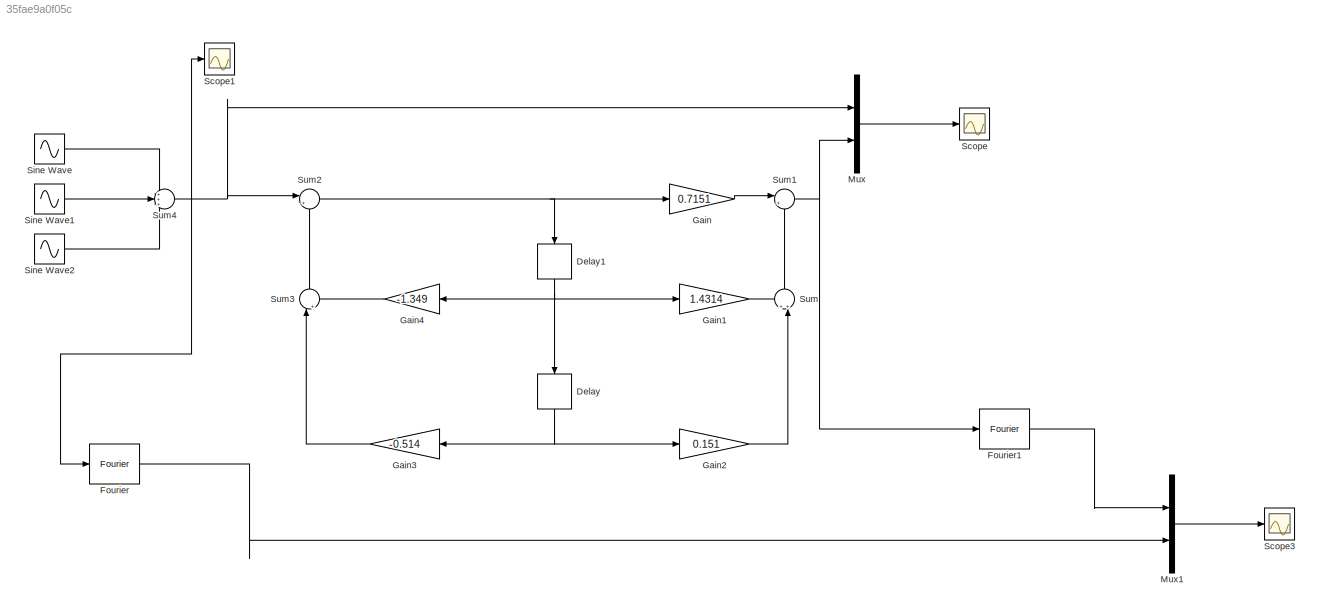
MODEL slx_35fae9a0f05c
KIND model
CONFIG AbsTol = auto
CONFIG EnableMultiTasking = off
CONFIG FixedStep = auto
CONFIG MaxStep = auto
CONFIG MinStep = auto
CONFIG RelTol = 1e-3
CONFIG SampleTimeConstraint = Unconstrained
CONFIG SolverName = VariableStepAuto
CONFIG StartTime = 0.0
CONFIG StopTime = 1
BLOCK [Delay] Delay
  DelayLength = 1
  InitialCondition = 0
  InputPortMap = u0
  NameLocation = left
BLOCK [Delay] Delay1
  DelayLength = 1
  InitialCondition = 0
  InputPortMap = u0
  NameLocation = left
BLOCK [Reference] Fourier  REF=spsFourierLib/Fourier
  LibrarySourceBlock = sps_lib/Sensors and Measurements/Fourier
  SourceBlock = spsFourierLib/Fourier
  SourceType = Fourier
BLOCK [Reference] Fourier1  REF=spsFourierLib/Fourier
  LibrarySourceBlock = sps_lib/Sensors and Measurements/Fourier
  SourceBlock = spsFourierLib/Fourier
  SourceType = Fourier
BLOCK [Gain] Gain
  Gain = 0.7151
BLOCK [Gain] Gain1
  Gain = 1.4314
BLOCK [Gain] Gain2
  Gain = 0.151
BLOCK [Gain] Gain3
  Gain = -0.514
BLOCK [Gain] Gain4
  Gain = -1.349
BLOCK [Mux] Mux
  DisplayOption = bar
  Inputs = 2
BLOCK [Mux] Mux1
  DisplayOption = bar
  Inputs = 2
BLOCK [Scope] Scope
  Floating = off
  NumInputPorts = 1
  ScopeSpecificationString = Simulink.scopes.TimeScopeBlockCfg('CurrentConfiguration', extmgr.ConfigurationSet(extmgr.Configuration('Core','General UI',true),extmgr.Configuration('Core','Source UI',true),extmgr.Configuration('Sources','WiredSimulink',true),extmgr.Configuration('Visuals','Time Domain',true,'SerializedDisplays',{struct('MinYLimReal','-4.01339','MaxYLimReal','4.71751','YLabelReal','','MinYLimMag','0.00000','MaxY...<+1391ch>
BLOCK [Scope] Scope1
  Floating = off
  NumInputPorts = 1
  ScopeSpecificationString = Simulink.scopes.TimeScopeBlockCfg('CurrentConfiguration', extmgr.ConfigurationSet(extmgr.Configuration('Core','General UI',true),extmgr.Configuration('Core','Source UI',true),extmgr.Configuration('Sources','WiredSimulink',true,'DataLoggingVariableName','ScopeData1'),extmgr.Configuration('Visuals','Time Domain',true,'SerializedDisplays',{struct('MinYLimReal','-2.97508','MaxYLimReal','3.21874','YLab...<+1412ch>
BLOCK [Scope] Scope3
  Floating = off
  NumInputPorts = 1
  ScopeSpecificationString = Simulink.scopes.TimeScopeBlockCfg('CurrentConfiguration', extmgr.ConfigurationSet(extmgr.Configuration('Core','General UI',true),extmgr.Configuration('Core','Source UI',true),extmgr.Configuration('Sources','WiredSimulink',true,'DataLoggingVariableName','ScopeData3'),extmgr.Configuration('Visuals','Time Domain',true,'SerializedDisplays',{struct('MinYLimReal','-0.42302','MaxYLimReal','3.80722','YLab...<+1439ch>
BLOCK [Sin] Sine Wave
  Frequency = 10
  Phase = 1.3
  SampleTime = 0
BLOCK [Sin] Sine Wave1
  Frequency = 20
  SampleTime = 0
BLOCK [Sin] Sine Wave2
  Amplitude = 2
  Frequency = 25
  Phase = 2.7
  SampleTime = 0
BLOCK [Sum] Sum
  Inputs = ++|
  NameLocation = right
BLOCK [Sum] Sum1
  Inputs = |++
BLOCK [Sum] Sum2
  Inputs = |++
BLOCK [Sum] Sum3
  Inputs = |++
  NameLocation = right
BLOCK [Sum] Sum4
  Inputs = +++
NET Delay1:1 -> Delay:1, Gain1:1, Gain4:1
NET Delay:1 -> Gain2:1, Gain3:1
LINE Fourier1:1 -> Mux1:1
LINE Fourier:1 -> Mux1:2
LINE Gain1:1 -> Sum:1
LINE Gain2:1 -> Sum:2
LINE Gain3:1 -> Sum3:1
LINE Gain4:1 -> Sum3:2
LINE Gain:1 -> Sum1:1
LINE Mux1:1 -> Scope3:1
LINE Mux:1 -> Scope:1
LINE Sine Wave1:1 -> Sum4:2
LINE Sine Wave2:1 -> Sum4:3
LINE Sine Wave:1 -> Sum4:1
NET Sum1:1 -> Fourier1:1, Mux:2
NET Sum2:1 -> Delay1:1, Gain:1
LINE Sum3:1 -> Sum2:2
NET Sum4:1 -> Fourier:1, Mux:1, Scope1:1, Sum2:1
LINE Sum:1 -> Sum1:2
note: NET lines group one-source signal fan-out (src -> all destinations, sorted); 1:1 wires keep LINE
